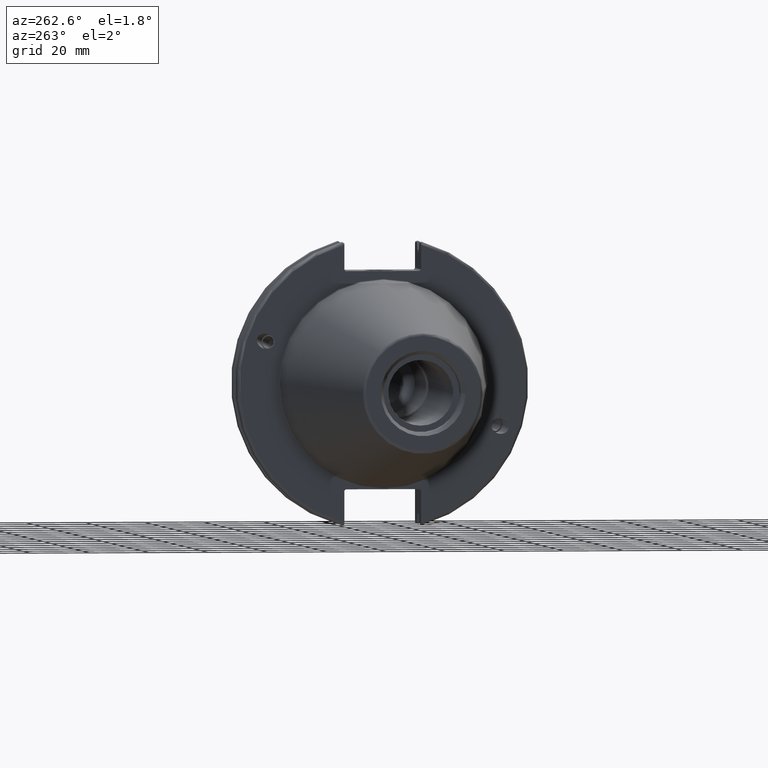
[diagram: clean part render]
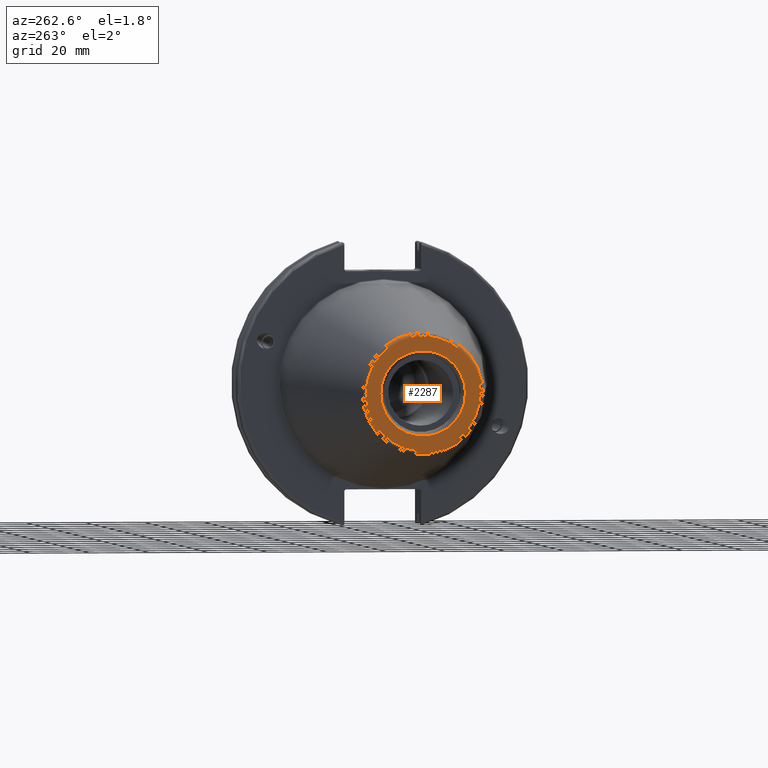
[diagram: same view with one face highlighted and labeled with its STEP entity id]
A machine part, auxiliary view. The second image highlights one B-rep face of the part: STEP entity #2287.
In plain terms, the highlighted planar face has unit normal (-1, 0, 0).
Its self-contained STEP definition (entity closure, byte-faithful):
#53=PLANE('',#2599);
#107=FACE_BOUND('',#381,.T.);
#252=FACE_OUTER_BOUND('',#380,.T.);
#380=EDGE_LOOP('',(#2019,#2020));
#381=EDGE_LOOP('',(#2021,#2022));
#802=CIRCLE('',#2596,19.2435889303637);
#803=CIRCLE('',#2597,19.2435889303637);
#805=CIRCLE('',#2600,14.2875);
#806=CIRCLE('',#2601,14.2875);
#1065=VERTEX_POINT('',#4498);
#1066=VERTEX_POINT('',#4500);
#1067=VERTEX_POINT('',#4505);
#1068=VERTEX_POINT('',#4506);
#1403=EDGE_CURVE('',#1065,#1066,#802,.T.);
#1404=EDGE_CURVE('',#1066,#1065,#803,.T.);
#1406=EDGE_CURVE('',#1067,#1068,#805,.T.);
#1407=EDGE_CURVE('',#1068,#1067,#806,.T.);
#2019=ORIENTED_EDGE('',*,*,#1404,.F.);
#2020=ORIENTED_EDGE('',*,*,#1403,.F.);
#2021=ORIENTED_EDGE('',*,*,#1406,.T.);
#2022=ORIENTED_EDGE('',*,*,#1407,.T.);
#2287=ADVANCED_FACE('',(#252,#107),#53,.T.);
#2596=AXIS2_PLACEMENT_3D('',#4501,#3255,#3256);
#2597=AXIS2_PLACEMENT_3D('',#4502,#3257,#3258);
#2599=AXIS2_PLACEMENT_3D('',#4504,#3261,#3262);
#2600=AXIS2_PLACEMENT_3D('',#4507,#3263,#3264);
#2601=AXIS2_PLACEMENT_3D('',#4508,#3265,#3266);
#3255=DIRECTION('center_axis',(1.,0.,0.));
#3256=DIRECTION('ref_axis',(0.,-1.,1.83697019872103E-16));
#3257=DIRECTION('center_axis',(1.,0.,0.));
#3258=DIRECTION('ref_axis',(0.,-1.,1.83697019872103E-16));
#3261=DIRECTION('center_axis',(-1.,0.,0.));
#3262=DIRECTION('ref_axis',(0.,0.,1.));
#3263=DIRECTION('center_axis',(1.,0.,0.));
#3264=DIRECTION('ref_axis',(0.,0.,-1.));
#3265=DIRECTION('center_axis',(1.,0.,0.));
#3266=DIRECTION('ref_axis',(0.,0.,-1.));
#4498=CARTESIAN_POINT('',(-101.6,-2.35665995876774E-15,19.2435889303637));
#4500=CARTESIAN_POINT('',(-101.6,19.2435889303637,-1.17832997938387E-15));
#4501=CARTESIAN_POINT('Origin',(-101.6,0.,0.));
#4502=CARTESIAN_POINT('Origin',(-101.6,0.,0.));
#4504=CARTESIAN_POINT('Origin',(-101.6,20.1083333333333,0.));
#4505=CARTESIAN_POINT('',(-101.6,14.2875,0.));
#4506=CARTESIAN_POINT('',(-101.6,-14.2875,-1.74971411428178E-15));
#4507=CARTESIAN_POINT('Origin',(-101.6,0.,0.));
#4508=CARTESIAN_POINT('Origin',(-101.6,0.,0.));